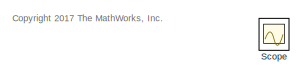
[diagram: root canvas - part 1/2, top left region]
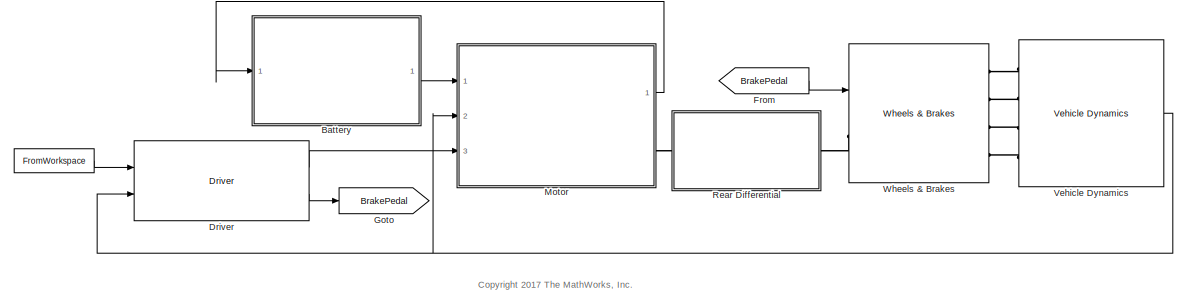
[diagram: root canvas - part 2/2, bottom right region]
MODEL slx_9745ac1ea6a9
KIND model
CONFIG AbsTol = auto
CONFIG EnableMultiTasking = off
CONFIG FixedStep = .001
CONFIG MaxStep = auto
CONFIG MinStep = auto
CONFIG RelTol = 1e-3
CONFIG SampleTimeConstraint = Unconstrained
CONFIG Solver = ode23tb
CONFIG SolverName = ode23tb
CONFIG StartTime = 0.0
CONFIG StopTime = TimeUS06
WORKSPACE source: MAT-file member
WORKSPACE Af = 4
BLOCK [FromWorkspace]  
  SampleTime = 0
  Tag = DriveCycle
  VariableName = DrCycles.US06
  ZeroCross = on
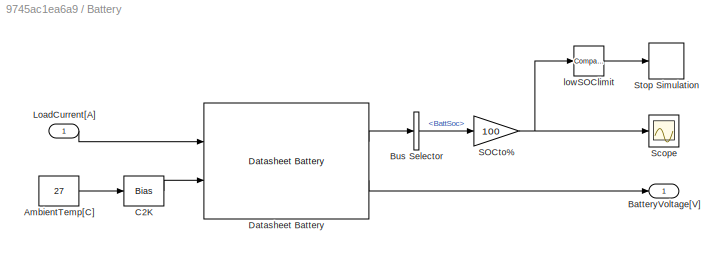
BLOCK [SubSystem] Battery
  Ports = [1, 1]
  RequestExecContextInheritance = off
BLOCK [Constant] Battery/AmbientTemp[C]
  Value = 27
BLOCK [Outport] Battery/BatteryVoltage[V]
  IconDisplay = Port number
BLOCK [BusSelector] Battery/Bus Selector
  OutputAsBus = off
  OutputSignals = BattSoc
  Ports = [1, 1]
BLOCK [Bias] Battery/C2K
  Bias = 273
  SaturateOnIntegerOverflow = off
BLOCK [Reference] Battery/Datasheet Battery  REF=autolibdatasheetbattery/Datasheet Battery
  Ports = [2, 2]
  SourceBlock = autolibdatasheetbattery/Datasheet Battery
  SourceProductBaseCode = PW
  SourceProductName = Powertrain Blockset
  SourceType = Datasheet Battery
BLOCK [Inport] Battery/LoadCurrent[A]
  IconDisplay = Port number
BLOCK [Gain] Battery/SOCto%
  Gain = 100
  OutDataTypeStr = Inherit: Inherit via internal rule
  ParamDataTypeStr = Inherit: Inherit via internal rule
  SaturateOnIntegerOverflow = off
BLOCK [Scope] Battery/Scope
  Floating = off
  NumInputPorts = 1
  Ports = [1]
  ScopeSpecificationString = Simulink.scopes.TimeScopeBlockCfg('CurrentConfiguration', extmgr.ConfigurationSet(extmgr.Configuration('Core','General UI',true),extmgr.Configuration('Core','Source UI',true),extmgr.Configuration('Sources','WiredSimulink',true,'DataLoggingVariableName','ScopeData1'),extmgr.Configuration('Visuals','Time Domain',true,'SerializedDisplays',{struct('MinYLimReal','85.50304','MaxYLimReal','101.61077','YL...<+1448ch>
BLOCK [Stop] Battery/Stop Simulation
BLOCK [Reference] Battery/lowSOClimit  REF=simulink/Logic and Bit
Operations/Compare
To Constant
  Ports = [1, 1]
  SourceBlock = simulink/Logic and Bit\nOperations/Compare\nTo Constant
  SourceProductBaseCode = SL
  SourceProductName = Simulink
  SourceType = Compare To Constant
BLOCK [Reference] Driver  REF=Wheels_Driver_VehDyn_Lib/Driver
  Ports = [2, 2]
  SourceBlock = Wheels_Driver_VehDyn_Lib/Driver
  SourceType = SubSystem
BLOCK [From] From
  GotoTag = BrakePedal
BLOCK [Goto] Goto
  GotoTag = BrakePedal
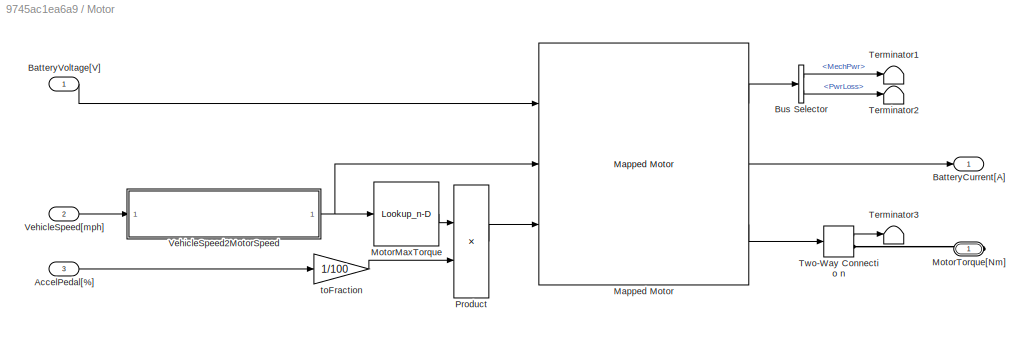
BLOCK [SubSystem] Motor
  Ports = [3, 1, 0, 0, 0, 0, 1]
  RequestExecContextInheritance = off
BLOCK [Inport] Motor/AccelPedal[%]
  IconDisplay = Port number
  Port = 3
BLOCK [Outport] Motor/BatteryCurrent[A]
  IconDisplay = Port number
BLOCK [Inport] Motor/BatteryVoltage[V]
  IconDisplay = Port number
BLOCK [BusSelector] Motor/Bus Selector
  OutputAsBus = off
  OutputSignals = MechPwr,PwrLoss
  Ports = [1, 2]
BLOCK [Reference] Motor/Mapped Motor  REF=autolibmappedmotor/Mapped Motor
  Ports = [3, 3]
  SourceBlock = autolibmappedmotor/Mapped Motor
  SourceProductBaseCode = PW
  SourceProductName = Powertrain Blockset
  SourceType = MappedMotor
BLOCK [Lookup_n-D] Motor/MotorMaxTorque
  BreakpointsForDimension1 = motorSpeedRadPs
  ExtrapMethod = Clip
  InternalRulePriority = Speed
  NumberOfTableDimensions = 1
  Ports = [1, 1]
  RndMeth = Simplest
  Table = motorMaxTorqueNm
BLOCK [PMIOPort] Motor/MotorTorque[Nm]
  Side = Right
BLOCK [Product] Motor/Product
  InputSameDT = off
  OutDataTypeStr = Inherit: Inherit via internal rule
  Ports = [2, 1]
  RndMeth = Floor
  SaturateOnIntegerOverflow = off
BLOCK [Terminator] Motor/Terminator1
BLOCK [Terminator] Motor/Terminator2
BLOCK [Terminator] Motor/Terminator3
BLOCK [TwoWayConnection] Motor/Two-Way Connectio n
  Ports = [1, 1, 0, 0, 0, 0, 1]
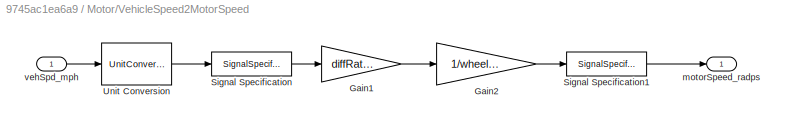
BLOCK [SubSystem] Motor/VehicleSpeed2MotorSpeed
  Ports = [1, 1]
  RequestExecContextInheritance = off
BLOCK [Gain] Motor/VehicleSpeed2MotorSpeed/Gain1
  Gain = diffRatio
  OutDataTypeStr = Inherit: Inherit via internal rule
  ParamDataTypeStr = Inherit: Inherit via internal rule
  SaturateOnIntegerOverflow = off
BLOCK [Gain] Motor/VehicleSpeed2MotorSpeed/Gain2
  Gain = 1/wheelRadius
  OutDataTypeStr = Inherit: Inherit via internal rule
  ParamDataTypeStr = Inherit: Inherit via internal rule
  SaturateOnIntegerOverflow = off
BLOCK [SignalSpecification] Motor/VehicleSpeed2MotorSpeed/Signal Specification
  Unit = m/s
BLOCK [SignalSpecification] Motor/VehicleSpeed2MotorSpeed/Signal Specification1
  Unit = rad/s
BLOCK [UnitConversion] Motor/VehicleSpeed2MotorSpeed/Unit Conversion
BLOCK [Outport] Motor/VehicleSpeed2MotorSpeed/motorSpeed_radps
  IconDisplay = Port number
BLOCK [Inport] Motor/VehicleSpeed2MotorSpeed/vehSpd_mph
  IconDisplay = Port number
BLOCK [Inport] Motor/VehicleSpeed[mph]
  IconDisplay = Port number
  Port = 2
BLOCK [Gain] Motor/toFraction
  Gain = 1/100
  OutDataTypeStr = Inherit: Inherit via internal rule
  ParamDataTypeStr = Inherit: Inherit via internal rule
  SaturateOnIntegerOverflow = off
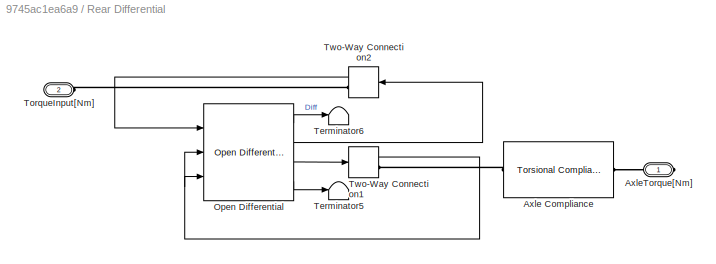
BLOCK [SubSystem] Rear Differential
  Ports = [0, 0, 0, 0, 0, 1, 1]
  RequestExecContextInheritance = off
BLOCK [Reference] Rear Differential/Axle Compliance  REF=autolibsharedcoupling/Torsional Compliance
  Ports = [0, 0, 0, 0, 0, 1, 1]
  SourceBlock = autolibsharedcoupling/Torsional Compliance
  SourceProductBaseCode = PW
  SourceProductName = Powertrain Blockset
  SourceType = Torsional Compliance
BLOCK [PMIOPort] Rear Differential/AxleTorque[Nm]
  Side = Right
BLOCK [Reference] Rear Differential/Open Differential  REF=autolibshareddiff/Open Differential
  Ports = [3, 4]
  SourceBlock = autolibshareddiff/Open Differential
  SourceProductBaseCode = PW
  SourceProductName = Powertrain Blockset
  SourceType = Open Differential
BLOCK [Terminator] Rear Differential/Terminator5
BLOCK [Terminator] Rear Differential/Terminator6
BLOCK [PMIOPort] Rear Differential/TorqueInput[Nm]
  Port = 2
  Side = Left
BLOCK [TwoWayConnection] Rear Differential/Two-Way Connection1
  Ports = [1, 1, 0, 0, 0, 0, 1]
BLOCK [TwoWayConnection] Rear Differential/Two-Way Connection2
  Ports = [1, 1, 0, 0, 0, 0, 1]
BLOCK [Scope] Scope
  Floating = off
  IOType = viewer
  NumInputPorts = 1
  Ports = []
  ScopeSpecificationString = Simulink.scopes.TimeScopeBlockCfg('CurrentConfiguration', extmgr.ConfigurationSet(extmgr.Configuration('Core','General UI',true),extmgr.Configuration('Core','Source UI',true),extmgr.Configuration('Sources','WiredSimulink',true,'DataLoggingVariableName','ScopeData1'),extmgr.Configuration('Visuals','Time Domain',true,'SerializedDisplays',{struct('MinYLimReal','-10.03761','MaxYLimReal','90.33751','YL...<+1463ch>
BLOCK [Reference] Vehicle Dynamics  REF=Wheels_Driver_VehDyn_Lib/Vehicle Dynamics
  Ports = [0, 1, 0, 0, 0, 4]
  SourceBlock = Wheels_Driver_VehDyn_Lib/Vehicle Dynamics
  SourceType = SubSystem
BLOCK [Reference] Wheels & Brakes  REF=Wheels_Driver_VehDyn_Lib/Wheels & Brakes
  Ports = [1, 0, 0, 0, 0, 1, 4]
  SourceBlock = Wheels_Driver_VehDyn_Lib/Wheels & Brakes
  SourceType = SubSystem
ANNOTATION (root): <copyright redacted>
LINE  :1 -> Driver:1
LINE Battery/AmbientTemp[C]:1 -> Battery/C2K:1
LINE Battery/Bus Selector:1 -> Battery/SOCto%:1
LINE Battery/C2K:1 -> Battery/Datasheet Battery:2
LINE Battery/Datasheet Battery:1 -> Battery/Bus Selector:1
LINE Battery/Datasheet Battery:2 -> Battery/BatteryVoltage[V]:1
LINE Battery/LoadCurrent[A]:1 -> Battery/Datasheet Battery:1
NET Battery/SOCto%:1 -> Battery/Scope:1, Battery/lowSOClimit:1
LINE Battery/lowSOClimit:1 -> Battery/Stop Simulation:1
LINE Battery:1 -> Motor:1
LINE Driver:1 -> Motor:3
LINE Driver:2 -> Goto:1
LINE From:1 -> Wheels & Brakes:1
LINE Motor/AccelPedal[%]:1 -> Motor/toFraction:1
LINE Motor/BatteryVoltage[V]:1 -> Motor/Mapped Motor:1
LINE Motor/Bus Selector:1 -> Motor/Terminator1:1
LINE Motor/Bus Selector:2 -> Motor/Terminator2:1
LINE Motor/Mapped Motor:1 -> Motor/Bus Selector:1
LINE Motor/Mapped Motor:2 -> Motor/BatteryCurrent[A]:1
LINE Motor/Mapped Motor:3 -> Motor/Two-Way Connectio n:1
LINE Motor/MotorMaxTorque:1 -> Motor/Product:1
LINE Motor/Product:1 -> Motor/Mapped Motor:3
LINE Motor/Two-Way Connectio n:1 -> Motor/Terminator3:1
LINE Motor/VehicleSpeed2MotorSpeed/Gain1:1 -> Motor/VehicleSpeed2MotorSpeed/Gain2:1
LINE Motor/VehicleSpeed2MotorSpeed/Gain2:1 -> Motor/VehicleSpeed2MotorSpeed/Signal Specification1:1
LINE Motor/VehicleSpeed2MotorSpeed/Signal Specification1:1 -> Motor/VehicleSpeed2MotorSpeed/motorSpeed_radps:1
LINE Motor/VehicleSpeed2MotorSpeed/Signal Specification:1 -> Motor/VehicleSpeed2MotorSpeed/Gain1:1
LINE Motor/VehicleSpeed2MotorSpeed/Unit Conversion:1 -> Motor/VehicleSpeed2MotorSpeed/Signal Specification:1
LINE Motor/VehicleSpeed2MotorSpeed/vehSpd_mph:1 -> Motor/VehicleSpeed2MotorSpeed/Unit Conversion:1
NET Motor/VehicleSpeed2MotorSpeed:1 -> Motor/Mapped Motor:2, Motor/MotorMaxTorque:1
LINE Motor/VehicleSpeed[mph]:1 -> Motor/VehicleSpeed2MotorSpeed:1
LINE Motor/toFraction:1 -> Motor/Product:2
LINE Motor:1 -> Battery:1
LINE Rear Differential/Open Differential:1 -> Rear Differential/Terminator6:1
LINE Rear Differential/Open Differential:2 -> Rear Differential/Two-Way Connection2:1
LINE Rear Differential/Open Differential:3 -> Rear Differential/Two-Way Connection1:1
LINE Rear Differential/Open Differential:4 -> Rear Differential/Terminator5:1
NET Rear Differential/Two-Way Connection1:1 -> Rear Differential/Open Differential:2, Rear Differential/Open Differential:3
LINE Rear Differential/Two-Way Connection2:1 -> Rear Differential/Open Differential:1
NET Vehicle Dynamics:1 -> Driver:2, Motor:2
PLINE Motor/MotorTorque[Nm]:RConn1 -- Motor/Two-Way Connectio n:RConn1
PLINE Motor:RConn1 -- Rear Differential:LConn1
PLINE Rear Differential/Axle Compliance:LConn1 -- Rear Differential/Two-Way Connection1:RConn1
PLINE Rear Differential/Axle Compliance:RConn1 -- Rear Differential/AxleTorque[Nm]:RConn1
PLINE Rear Differential/TorqueInput[Nm]:RConn1 -- Rear Differential/Two-Way Connection2:RConn1
PLINE Rear Differential:RConn1 -- Wheels & Brakes:LConn1
PLINE Vehicle Dynamics:LConn1 -- Wheels & Brakes:RConn1
PLINE Vehicle Dynamics:LConn2 -- Wheels & Brakes:RConn2
PLINE Vehicle Dynamics:LConn3 -- Wheels & Brakes:RConn3
PLINE Vehicle Dynamics:LConn4 -- Wheels & Brakes:RConn4
note: NET lines group one-source signal fan-out (src -> all destinations, sorted); 1:1 wires keep LINE
